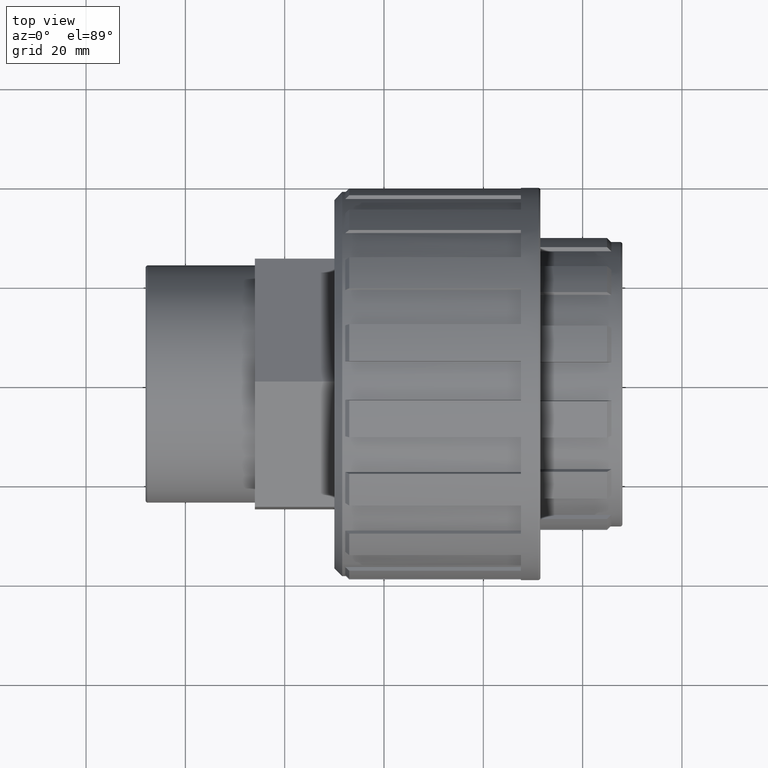
[diagram: clean part render]
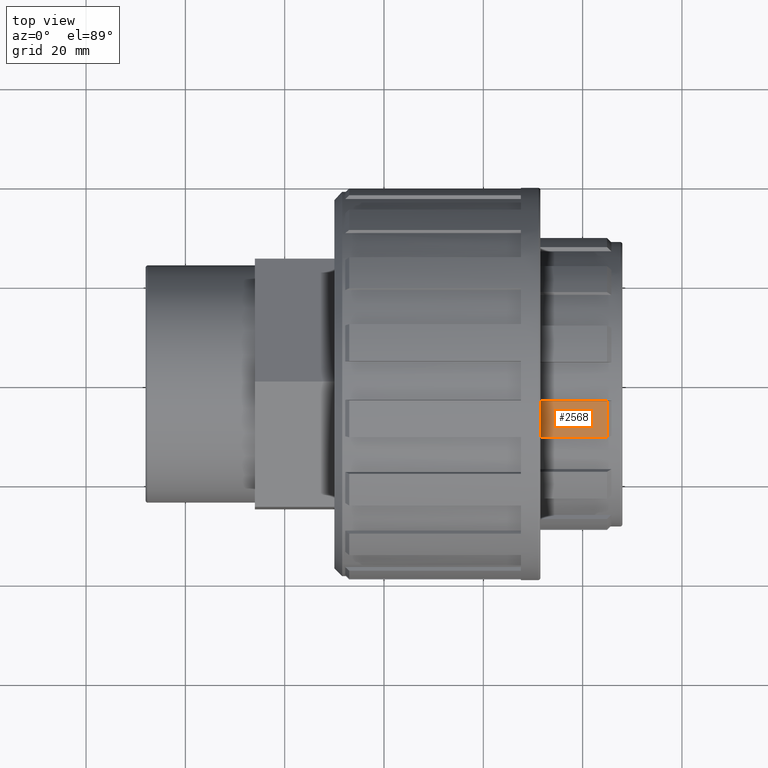
[diagram: same view with one face highlighted and labeled with its STEP entity id]
A machine part, top view. The second image highlights one B-rep face of the part: STEP entity #2568.
In plain terms, the highlighted cylindrical surface (partial cylindrical patch) has radius 29.5977 mm, axis along (-1, -0, 0).
Its self-contained STEP definition (entity closure, byte-faithful):
#81=CYLINDRICAL_SURFACE('',#2792,29.5977);
#173=CIRCLE('',#2793,29.5977);
#174=CIRCLE('',#2794,29.5977);
#322=FACE_OUTER_BOUND('',#463,.T.);
#463=EDGE_LOOP('',(#2097,#2098,#2099,#2100));
#691=LINE('',#4138,#933);
#693=LINE('',#4144,#935);
#933=VECTOR('',#3328,13.4031);
#935=VECTOR('',#3332,13.4031);
#1169=VERTEX_POINT('',#4132);
#1171=VERTEX_POINT('',#4136);
#1172=VERTEX_POINT('',#4140);
#1174=VERTEX_POINT('',#4143);
#1494=EDGE_CURVE('',#1169,#1171,#691,.T.);
#1496=EDGE_CURVE('',#1174,#1172,#693,.T.);
#1579=EDGE_CURVE('',#1174,#1171,#173,.T.);
#1580=EDGE_CURVE('',#1169,#1172,#174,.T.);
#2097=ORIENTED_EDGE('',*,*,#1494,.T.);
#2098=ORIENTED_EDGE('',*,*,#1579,.F.);
#2099=ORIENTED_EDGE('',*,*,#1496,.T.);
#2100=ORIENTED_EDGE('',*,*,#1580,.F.);
#2568=ADVANCED_FACE('',(#322),#81,.T.);
#2792=AXIS2_PLACEMENT_3D('',#4316,#3481,#3482);
#2793=AXIS2_PLACEMENT_3D('',#4317,#3483,#3484);
#2794=AXIS2_PLACEMENT_3D('',#4318,#3485,#3486);
#3328=DIRECTION('',(-1.,-1.83697019872103E-16,0.));
#3332=DIRECTION('',(1.,1.83697019872103E-16,0.));
#3481=DIRECTION('center_axis',(-1.,-1.83697019872103E-16,0.));
#3482=DIRECTION('ref_axis',(1.85799723803972E-16,-1.,0.));
#3483=DIRECTION('center_axis',(-1.,-1.83697019872103E-16,0.));
#3484=DIRECTION('ref_axis',(0.,0.,1.));
#3485=DIRECTION('center_axis',(1.,1.83697019872103E-16,0.));
#3486=DIRECTION('ref_axis',(1.85799723803972E-16,-1.,0.));
#4132=CARTESIAN_POINT('',(44.9031,-3.94999999999999,29.3329395951037));
#4136=CARTESIAN_POINT('',(31.5,-3.94999999999999,29.3329395951037));
#4138=CARTESIAN_POINT('',(38.65,-3.94999999999999,29.3329395951037));
#4140=CARTESIAN_POINT('',(44.9031,-11.2456694526033,27.3780708570342));
#4143=CARTESIAN_POINT('',(31.5,-11.2456694526033,27.3780708570342));
#4144=CARTESIAN_POINT('',(38.65,-11.2456694526033,27.3780708570342));
#4316=CARTESIAN_POINT('Origin',(38.65,1.59173467719177E-14,0.));
#4317=CARTESIAN_POINT('Origin',(31.5,1.46039130798322E-14,0.));
#4318=CARTESIAN_POINT('Origin',(44.9031,1.706602260688E-14,0.));